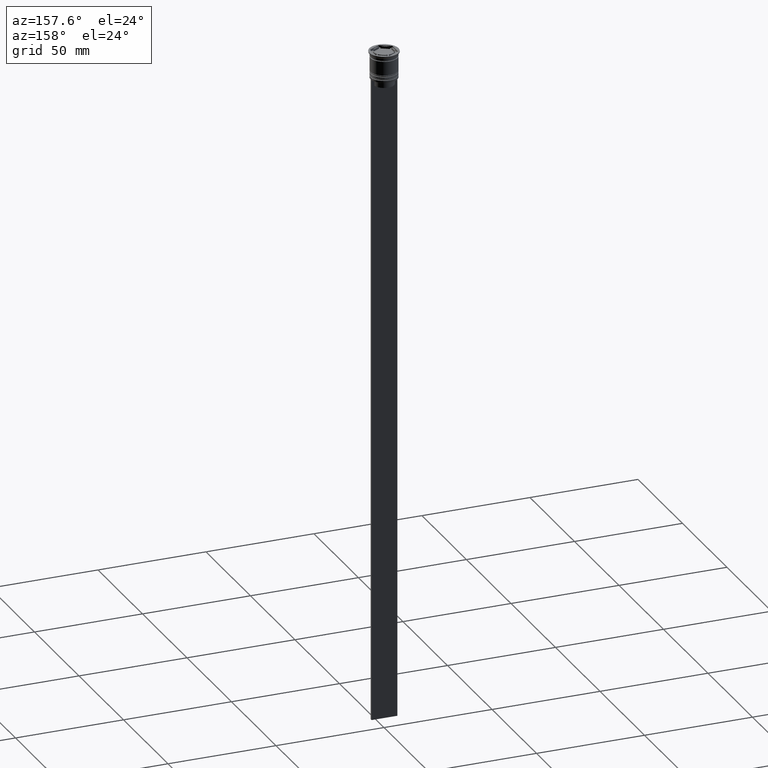
[diagram: clean part render]
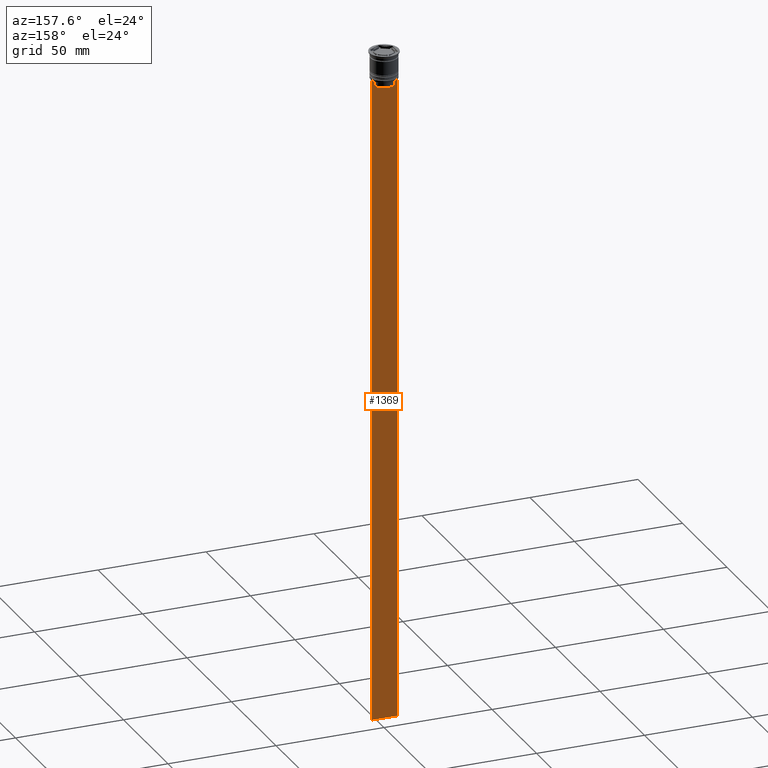
[diagram: same view with one face highlighted and labeled with its STEP entity id]
A machine part, auxiliary view. The second image highlights one B-rep face of the part: STEP entity #1369.
In plain terms, the highlighted planar face has unit normal (0, -1, -0).
Its self-contained STEP definition (entity closure, byte-faithful):
#9 = VERTEX_POINT ( 'NONE', #1816 ) ;
#12 = CARTESIAN_POINT ( 'NONE',  ( -4.623040125285526436, 0.4999999999999982792, -13.00000000000000178 ) ) ;
#29 = VERTEX_POINT ( 'NONE', #202 ) ;
#36 = DIRECTION ( 'NONE',  ( 0.000000000000000000, 0.000000000000000000, -1.000000000000000000 ) ) ;
#66 = LINE ( 'NONE', #1332, #1496 ) ;
#94 = B_SPLINE_CURVE_WITH_KNOTS ( 'NONE', 3,
 ( #1642, #214, #1820, #12 ),
 .UNSPECIFIED., .F., .F.,
 ( 4, 4 ),
 ( 0.008759809102772707357, 0.009468778395565351919 ),
 .UNSPECIFIED. ) ;
#130 = ORIENTED_EDGE ( 'NONE', *, *, #1802, .T. ) ;
#194 = DIRECTION ( 'NONE',  ( 1.000000000000000000, 0.000000000000000000, 0.000000000000000000 ) ) ;
#202 = CARTESIAN_POINT ( 'NONE',  ( 4.623040125285526436, 0.4999999999999982792, -13.00000000000000178 ) ) ;
#214 = CARTESIAN_POINT ( 'NONE',  ( -4.958169823806762189, 0.4999999999999982792, -12.66670956677067750 ) ) ;
#216 = CARTESIAN_POINT ( 'NONE',  ( -5.999999999999983125, 0.4999999999999982792, -0.4584054212077061097 ) ) ;
#229 = VECTOR ( 'NONE', #194, 1000.000000000000000 ) ;
#274 = VERTEX_POINT ( 'NONE', #2242 ) ;
#294 = VERTEX_POINT ( 'NONE', #857 ) ;
#358 = ORIENTED_EDGE ( 'NONE', *, *, #1158, .T. ) ;
#361 = ORIENTED_EDGE ( 'NONE', *, *, #1578, .T. ) ;
#369 = LINE ( 'NONE', #1823, #229 ) ;
#395 = EDGE_CURVE ( 'NONE', #9, #1197, #1123, .T. ) ;
#420 = DIRECTION ( 'NONE',  ( 0.000000000000000000, 0.000000000000000000, -1.000000000000000000 ) ) ;
#447 = EDGE_CURVE ( 'NONE', #606, #583, #369, .T. ) ;
#489 = CARTESIAN_POINT ( 'NONE',  ( 4.623040125285526436, 0.4999999999999982792, 0.000000000000000000 ) ) ;
#569 = ORIENTED_EDGE ( 'NONE', *, *, #763, .T. ) ;
#583 = VERTEX_POINT ( 'NONE', #1200 ) ;
#606 = VERTEX_POINT ( 'NONE', #893 ) ;
#656 = ORIENTED_EDGE ( 'NONE', *, *, #2319, .T. ) ;
#660 = FACE_OUTER_BOUND ( 'NONE', #2137, .T. ) ;
#667 = CARTESIAN_POINT ( 'NONE',  ( 4.790630799407576745, 0.4999999999999982792, -12.83338098686239093 ) ) ;
#671 = VECTOR ( 'NONE', #2139, 1000.000000000000000 ) ;
#699 = EDGE_CURVE ( 'NONE', #1739, #29, #1041, .T. ) ;
#723 = ORIENTED_EDGE ( 'NONE', *, *, #447, .T. ) ;
#737 = DIRECTION ( 'NONE',  ( -1.000000000000000000, 0.000000000000000000, 0.000000000000000000 ) ) ;
#763 = EDGE_CURVE ( 'NONE', #583, #1591, #953, .T. ) ;
#857 = CARTESIAN_POINT ( 'NONE',  ( -5.125670687822231564, 0.4999999999999982792, -12.50000000000000000 ) ) ;
#866 = DIRECTION ( 'NONE',  ( -0.000000000000000000, -0.000000000000000000, 1.000000000000000000 ) ) ;
#876 = CARTESIAN_POINT ( 'NONE',  ( 0.000000000000000000, 0.4999999999999987232, -15.50000000000000000 ) ) ;
#893 = CARTESIAN_POINT ( 'NONE',  ( 5.125670687822231564, 0.4999999999999982792, -12.50000000000000000 ) ) ;
#953 = LINE ( 'NONE', #1305, #1988 ) ;
#970 = DIRECTION ( 'NONE',  ( 0.000000000000000000, 0.000000000000000000, -1.000000000000000000 ) ) ;
#993 = EDGE_CURVE ( 'NONE', #1591, #1197, #2013, .T. ) ;
#1003 = VECTOR ( 'NONE', #866, 1000.000000000000000 ) ;
#1032 = DIRECTION ( 'NONE',  ( 0.000000000000000000, 0.000000000000000000, -1.000000000000000000 ) ) ;
#1041 = LINE ( 'NONE', #489, #1003 ) ;
#1044 = ORIENTED_EDGE ( 'NONE', *, *, #699, .T. ) ;
#1076 = CARTESIAN_POINT ( 'NONE',  ( 4.958169719475987058, 0.4999999999999982792, -12.66670967060858111 ) ) ;
#1123 = LINE ( 'NONE', #216, #1632 ) ;
#1145 = CARTESIAN_POINT ( 'NONE',  ( 6.000000000000016875, 0.4999999999999982792, -312.5000000000000000 ) ) ;
#1158 = EDGE_CURVE ( 'NONE', #9, #294, #66, .T. ) ;
#1169 = ORIENTED_EDGE ( 'NONE', *, *, #395, .F. ) ;
#1197 = VERTEX_POINT ( 'NONE', #2054 ) ;
#1200 = CARTESIAN_POINT ( 'NONE',  ( 6.000000000000016875, 0.4999999999999982792, -12.50000000000000000 ) ) ;
#1218 = DIRECTION ( 'NONE',  ( 0.000000000000000000, -1.000000000000000000, -0.000000000000000000 ) ) ;
#1294 = DIRECTION ( 'NONE',  ( 1.000000000000000000, 0.000000000000000000, 0.000000000000000000 ) ) ;
#1305 = CARTESIAN_POINT ( 'NONE',  ( 6.000000000000016875, 0.4999999999999982792, -0.4584054212077061097 ) ) ;
#1332 = CARTESIAN_POINT ( 'NONE',  ( 6.000000000000016875, 0.4999999999999982792, -12.50000000000000000 ) ) ;
#1351 = B_SPLINE_CURVE_WITH_KNOTS ( 'NONE', 3,
 ( #2108, #667, #1076, #1998 ),
 .UNSPECIFIED., .F., .F.,
 ( 4, 4 ),
 ( 0.02203698174624552433, 0.02275222543365896036 ),
 .UNSPECIFIED. ) ;
#1369 = ADVANCED_FACE ( 'NONE', ( #660 ), #1395, .F. ) ;
#1395 = PLANE ( 'NONE',  #1671 ) ;
#1423 = LINE ( 'NONE', #876, #671 ) ;
#1471 = CARTESIAN_POINT ( 'NONE',  ( -4.623040125285526436, 0.4999999999999982792, 0.000000000000000000 ) ) ;
#1496 = VECTOR ( 'NONE', #1294, 1000.000000000000000 ) ;
#1513 = LINE ( 'NONE', #1471, #1827 ) ;
#1578 = EDGE_CURVE ( 'NONE', #274, #1830, #1513, .T. ) ;
#1591 = VERTEX_POINT ( 'NONE', #1145 ) ;
#1604 = VECTOR ( 'NONE', #737, 1000.000000000000000 ) ;
#1632 = VECTOR ( 'NONE', #420, 1000.000000000000000 ) ;
#1642 = CARTESIAN_POINT ( 'NONE',  ( -5.125670687822231564, 0.4999999999999982792, -12.50000000000000000 ) ) ;
#1671 = AXIS2_PLACEMENT_3D ( 'NONE', #2110, #1218, #1032 ) ;
#1739 = VERTEX_POINT ( 'NONE', #2070 ) ;
#1785 = ORIENTED_EDGE ( 'NONE', *, *, #1987, .T. ) ;
#1802 = EDGE_CURVE ( 'NONE', #29, #606, #1351, .T. ) ;
#1816 = CARTESIAN_POINT ( 'NONE',  ( -5.999999999999983125, 0.4999999999999985012, -12.50000000000000000 ) ) ;
#1820 = CARTESIAN_POINT ( 'NONE',  ( -4.790630915080666519, 0.4999999999999982792, -12.83338087185995313 ) ) ;
#1823 = CARTESIAN_POINT ( 'NONE',  ( 6.000000000000016875, 0.4999999999999982792, -12.50000000000000000 ) ) ;
#1827 = VECTOR ( 'NONE', #970, 1000.000000000000000 ) ;
#1830 = VERTEX_POINT ( 'NONE', #2118 ) ;
#1942 = CARTESIAN_POINT ( 'NONE',  ( 6.000000000000016875, 0.4999999999999982792, -312.5000000000000000 ) ) ;
#1987 = EDGE_CURVE ( 'NONE', #294, #274, #94, .T. ) ;
#1988 = VECTOR ( 'NONE', #36, 1000.000000000000000 ) ;
#1998 = CARTESIAN_POINT ( 'NONE',  ( 5.125670687822231564, 0.4999999999999982792, -12.50000000000000000 ) ) ;
#2006 = ORIENTED_EDGE ( 'NONE', *, *, #993, .T. ) ;
#2013 = LINE ( 'NONE', #1942, #1604 ) ;
#2054 = CARTESIAN_POINT ( 'NONE',  ( -5.999999999999983125, 0.4999999999999982792, -312.5000000000000000 ) ) ;
#2070 = CARTESIAN_POINT ( 'NONE',  ( 4.623040125285526436, 0.4999999999999987232, -15.50000000000000000 ) ) ;
#2108 = CARTESIAN_POINT ( 'NONE',  ( 4.623040125285526436, 0.4999999999999982792, -13.00000000000000178 ) ) ;
#2110 = CARTESIAN_POINT ( 'NONE',  ( 6.000000000000016875, 0.4999999999999982792, -0.4584054212077061097 ) ) ;
#2118 = CARTESIAN_POINT ( 'NONE',  ( -4.623040125285526436, 0.4999999999999987232, -15.50000000000000000 ) ) ;
#2137 = EDGE_LOOP ( 'NONE', ( #358, #1785, #361, #656, #1044, #130, #723, #569, #2006, #1169 ) ) ;
#2139 = DIRECTION ( 'NONE',  ( 1.000000000000000000, 0.000000000000000000, 0.000000000000000000 ) ) ;
#2242 = CARTESIAN_POINT ( 'NONE',  ( -4.623040125285526436, 0.4999999999999982792, -13.00000000000000178 ) ) ;
#2319 = EDGE_CURVE ( 'NONE', #1830, #1739, #1423, .T. ) ;